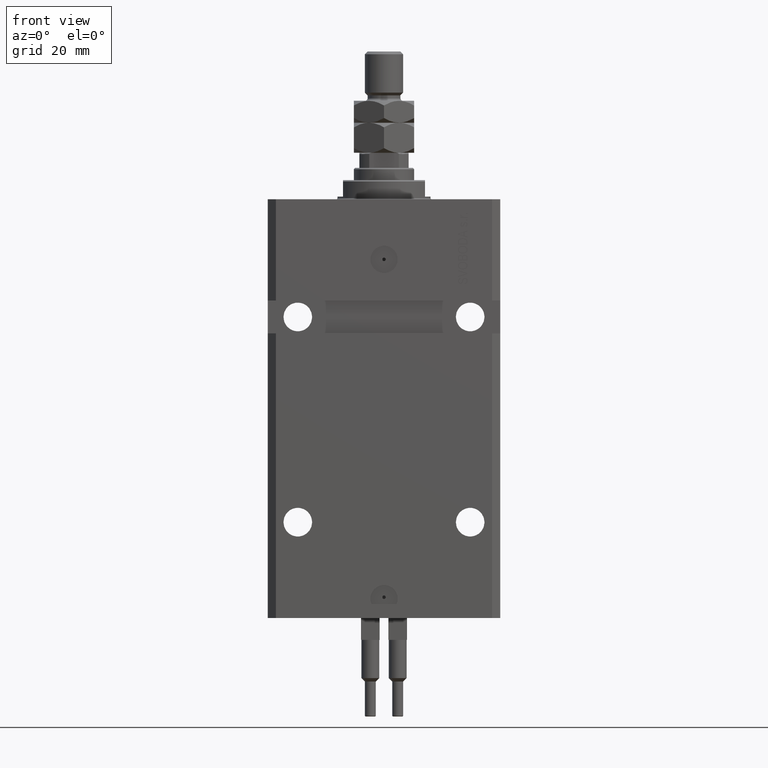
[diagram: clean part render]
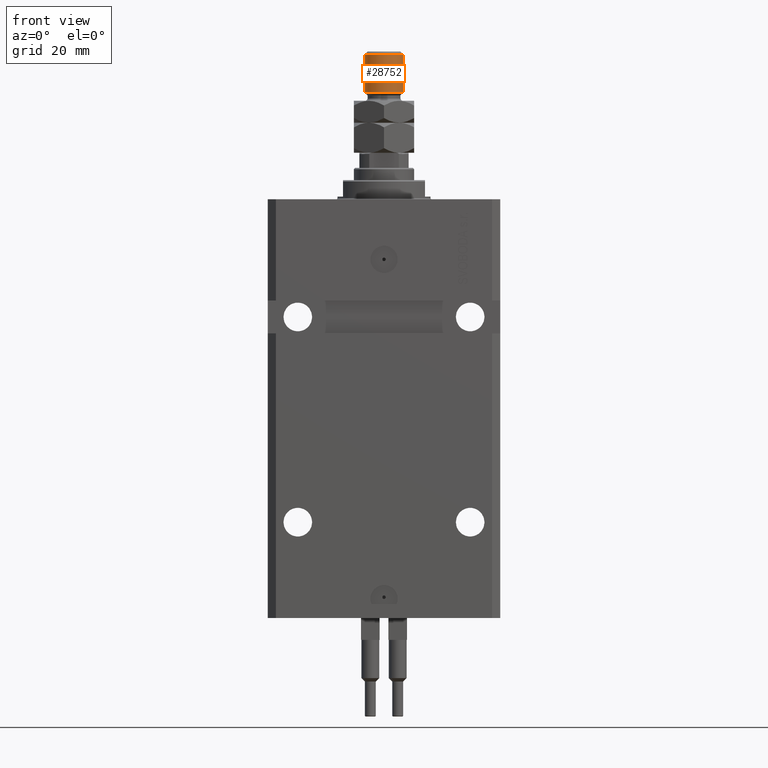
[diagram: same view with one face highlighted and labeled with its STEP entity id]
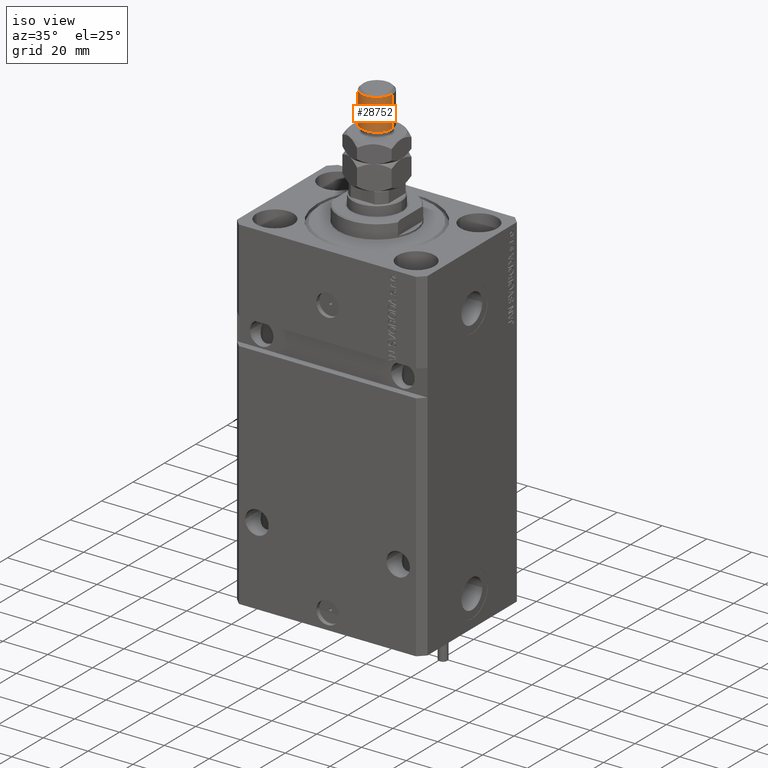
[diagram: same view with one face highlighted and labeled with its STEP entity id]
A machine part, front view. The second image highlights one B-rep face of the part: STEP entity #28752.
A second angle (iso view) of the same face is appended — the face is thin or edge-on in the first view.
In plain terms, the highlighted cylindrical surface (edge-blend (fillet) strip) has radius 7 mm, axis along (-0, -0, -1).
Its self-contained STEP definition (entity closure, byte-faithful):
#330 = CARTESIAN_POINT ( 'NONE',  ( -7.000000000000000000, 0.000000000000000000, 35.99999999999999289 ) ) ;
#5765 = VERTEX_POINT ( 'NONE', #17781 ) ;
#5900 = VECTOR ( 'NONE', #6959, 1000.000000000000000 ) ;
#6959 = DIRECTION ( 'NONE',  ( -0.000000000000000000, -0.000000000000000000, -1.000000000000000000 ) ) ;
#7224 = CARTESIAN_POINT ( 'NONE',  ( 7.000000000000000000, 8.572527594031473190E-16, 37.00000000000000000 ) ) ;
#7471 = ORIENTED_EDGE ( 'NONE', *, *, #20829, .T. ) ;
#7648 = CIRCLE ( 'NONE', #21659, 7.000000000000000000 ) ;
#7938 = CARTESIAN_POINT ( 'NONE',  ( 0.000000000000000000, 0.000000000000000000, 37.00000000000000000 ) ) ;
#10180 = ORIENTED_EDGE ( 'NONE', *, *, #36616, .T. ) ;
#10654 = AXIS2_PLACEMENT_3D ( 'NONE', #38457, #11073, #31445 ) ;
#10656 = LINE ( 'NONE', #33382, #43844 ) ;
#11073 = DIRECTION ( 'NONE',  ( -0.000000000000000000, -0.000000000000000000, 1.000000000000000000 ) ) ;
#11567 = DIRECTION ( 'NONE',  ( -1.000000000000000000, 0.000000000000000000, 0.000000000000000000 ) ) ;
#13621 = CARTESIAN_POINT ( 'NONE',  ( -7.000000000000000000, 0.000000000000000000, 22.00000000000000355 ) ) ;
#13784 = DIRECTION ( 'NONE',  ( -0.000000000000000000, -0.000000000000000000, -1.000000000000000000 ) ) ;
#14842 = EDGE_CURVE ( 'NONE', #22277, #5765, #18596, .T. ) ;
#15039 = DIRECTION ( 'NONE',  ( 0.000000000000000000, 0.000000000000000000, -1.000000000000000000 ) ) ;
#15955 = FACE_OUTER_BOUND ( 'NONE', #26337, .T. ) ;
#15996 = EDGE_CURVE ( 'NONE', #38125, #30074, #10656, .T. ) ;
#17781 = CARTESIAN_POINT ( 'NONE',  ( 7.000000000000000000, 8.572527594031473190E-16, 22.00000000000000355 ) ) ;
#18596 = LINE ( 'NONE', #7224, #5900 ) ;
#19816 = CYLINDRICAL_SURFACE ( 'NONE', #50839, 7.000000000000000000 ) ;
#20829 = EDGE_CURVE ( 'NONE', #22277, #38125, #7648, .T. ) ;
#21659 = AXIS2_PLACEMENT_3D ( 'NONE', #34637, #15039, #23020 ) ;
#22277 = VERTEX_POINT ( 'NONE', #36610 ) ;
#23020 = DIRECTION ( 'NONE',  ( 1.000000000000000000, 0.000000000000000000, 0.000000000000000000 ) ) ;
#26337 = EDGE_LOOP ( 'NONE', ( #31868, #7471, #29447, #10180 ) ) ;
#28752 = ADVANCED_FACE ( 'NONE', ( #15955 ), #19816, .T. ) ;
#29447 = ORIENTED_EDGE ( 'NONE', *, *, #15996, .T. ) ;
#30074 = VERTEX_POINT ( 'NONE', #13621 ) ;
#31445 = DIRECTION ( 'NONE',  ( 1.000000000000000000, 0.000000000000000000, 0.000000000000000000 ) ) ;
#31868 = ORIENTED_EDGE ( 'NONE', *, *, #14842, .F. ) ;
#33382 = CARTESIAN_POINT ( 'NONE',  ( -7.000000000000000000, 0.000000000000000000, 37.00000000000000000 ) ) ;
#34637 = CARTESIAN_POINT ( 'NONE',  ( 0.000000000000000000, 0.000000000000000000, 35.99999999999999289 ) ) ;
#35057 = DIRECTION ( 'NONE',  ( -0.000000000000000000, -0.000000000000000000, -1.000000000000000000 ) ) ;
#36610 = CARTESIAN_POINT ( 'NONE',  ( 7.000000000000000000, 8.572527594031473190E-16, 35.99999999999999289 ) ) ;
#36616 = EDGE_CURVE ( 'NONE', #30074, #5765, #38704, .T. ) ;
#38125 = VERTEX_POINT ( 'NONE', #330 ) ;
#38457 = CARTESIAN_POINT ( 'NONE',  ( 0.000000000000000000, 0.000000000000000000, 22.00000000000000355 ) ) ;
#38704 = CIRCLE ( 'NONE', #10654, 7.000000000000000000 ) ;
#43844 = VECTOR ( 'NONE', #13784, 1000.000000000000000 ) ;
#50839 = AXIS2_PLACEMENT_3D ( 'NONE', #7938, #35057, #11567 ) ;